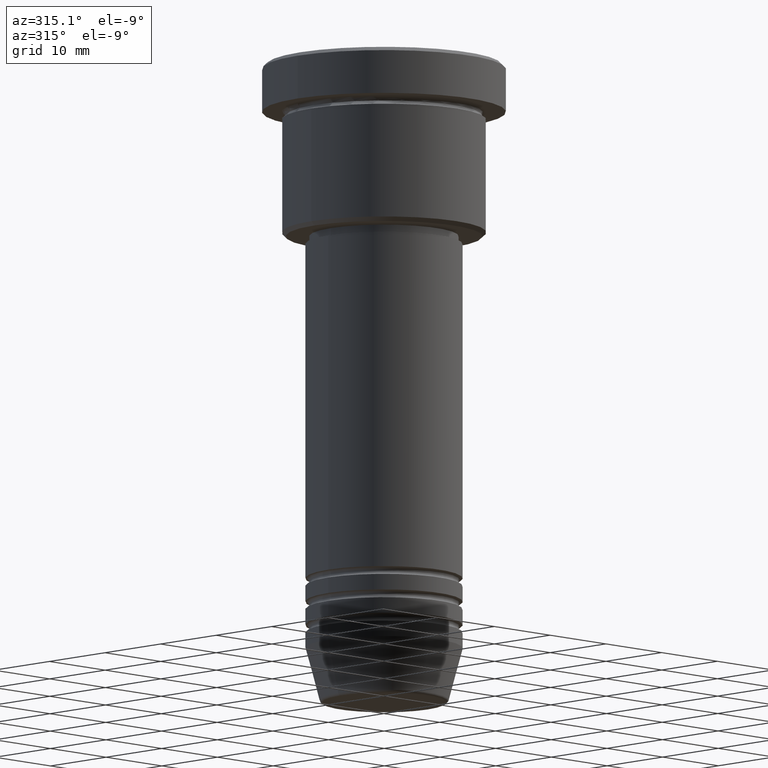
[diagram: clean part render]
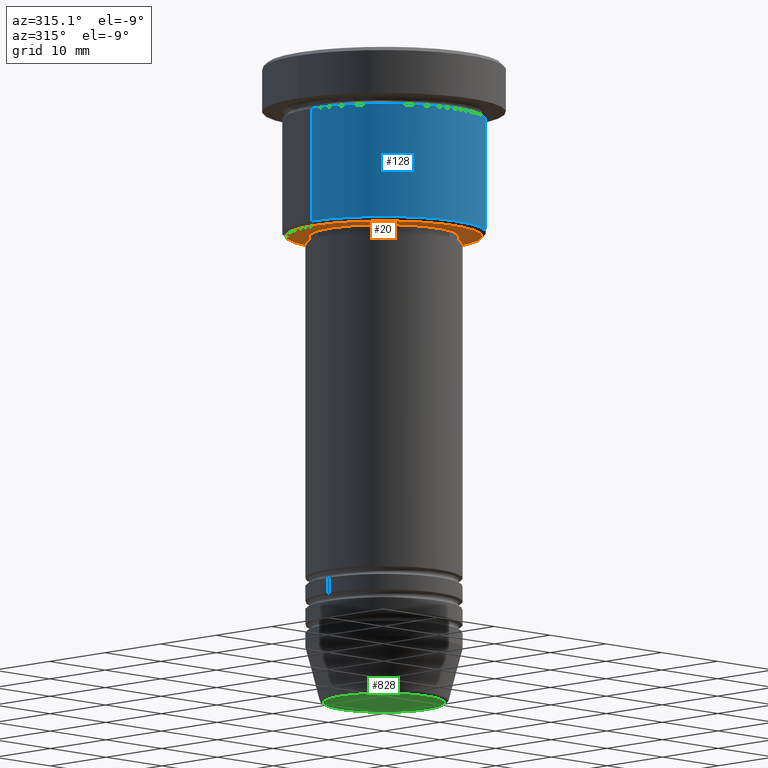
[diagram: same view with three faces highlighted in distinct colors, each labeled with its STEP entity id]
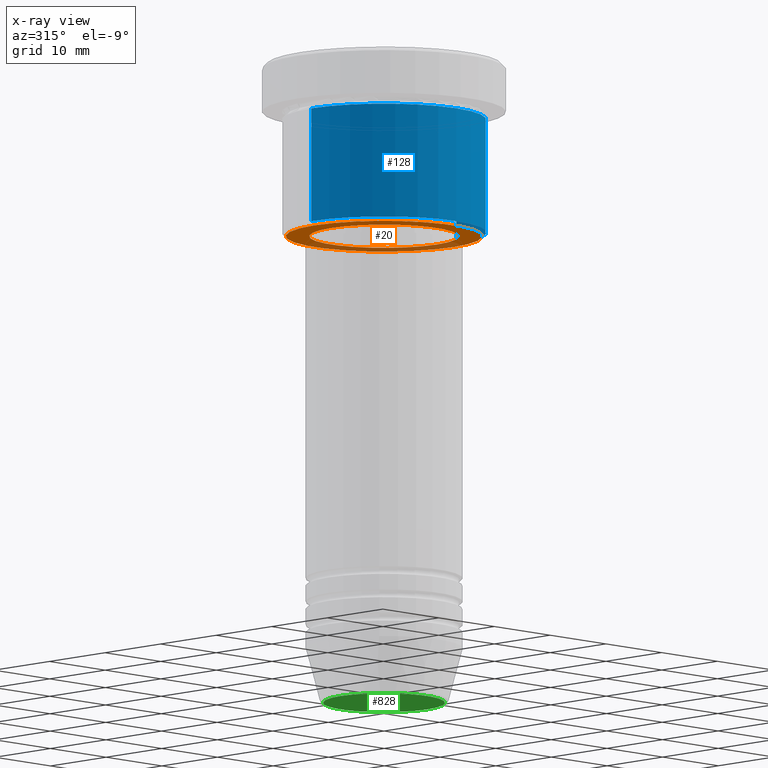
[diagram: x-ray of the same camera — body ghosted, the three highlighted faces saturated]
A machine part, auxiliary view with three faces highlighted in distinct colors.
The next image is the same camera in x-ray (body ghosted, the three faces saturated) — at least one of them is partly hidden behind the body in this view.
Their STEP definitions:

[orange] entity #20 — the highlighted planar face has unit normal (0, 0, -1).
#2 = DIRECTION ( 'NONE',  ( -1.000000000000000000, 0.000000000000000000, -0.000000000000000000 ) ) ;
#20 = ADVANCED_FACE ( 'NONE', ( #363, #109 ), #375, .T. ) ;
#42 = DIRECTION ( 'NONE',  ( 1.000000000000000000, 0.000000000000000000, 0.000000000000000000 ) ) ;
#58 = CARTESIAN_POINT ( 'NONE',  ( 9.500000000000000000, 0.000000000000000000, -21.99999999999999645 ) ) ;
#102 = DIRECTION ( 'NONE',  ( -1.000000000000000000, 0.000000000000000000, 0.000000000000000000 ) ) ;
#103 = ORIENTED_EDGE ( 'NONE', *, *, #207, .T. ) ;
#109 = FACE_BOUND ( 'NONE', #415, .T. ) ;
#155 = CARTESIAN_POINT ( 'NONE',  ( -9.500000000000000000, 1.163414459189985485E-15, -21.99999999999999645 ) ) ;
#207 = EDGE_CURVE ( 'NONE', #1055, #874, #981, .T. ) ;
#217 = AXIS2_PLACEMENT_3D ( 'NONE', #1094, #275, #2 ) ;
#262 = CIRCLE ( 'NONE', #545, 9.500000000000000000 ) ;
#275 = DIRECTION ( 'NONE',  ( 0.000000000000000000, 0.000000000000000000, -1.000000000000000000 ) ) ;
#320 = CARTESIAN_POINT ( 'NONE',  ( 0.000000000000000000, 0.000000000000000000, -21.99999999999999289 ) ) ;
#322 = ORIENTED_EDGE ( 'NONE', *, *, #1166, .T. ) ;
#326 = VERTEX_POINT ( 'NONE', #611 ) ;
#359 = DIRECTION ( 'NONE',  ( -1.000000000000000000, 0.000000000000000000, 0.000000000000000000 ) ) ;
#363 = FACE_OUTER_BOUND ( 'NONE', #587, .T. ) ;
#375 = PLANE ( 'NONE',  #217 ) ;
#393 = CARTESIAN_POINT ( 'NONE',  ( 0.000000000000000000, 0.000000000000000000, -21.99999999999999645 ) ) ;
#415 = EDGE_LOOP ( 'NONE', ( #103, #763 ) ) ;
#424 = AXIS2_PLACEMENT_3D ( 'NONE', #1022, #493, #42 ) ;
#476 = DIRECTION ( 'NONE',  ( -0.000000000000000000, -0.000000000000000000, 1.000000000000000000 ) ) ;
#493 = DIRECTION ( 'NONE',  ( -0.000000000000000000, -0.000000000000000000, 1.000000000000000000 ) ) ;
#545 = AXIS2_PLACEMENT_3D ( 'NONE', #393, #476, #838 ) ;
#587 = EDGE_LOOP ( 'NONE', ( #322, #1172 ) ) ;
#611 = CARTESIAN_POINT ( 'NONE',  ( 12.50000000000000355, 0.000000000000000000, -21.99999999999999289 ) ) ;
#690 = DIRECTION ( 'NONE',  ( 0.000000000000000000, 0.000000000000000000, -1.000000000000000000 ) ) ;
#708 = EDGE_CURVE ( 'NONE', #874, #1055, #262, .T. ) ;
#763 = ORIENTED_EDGE ( 'NONE', *, *, #708, .T. ) ;
#783 = CARTESIAN_POINT ( 'NONE',  ( -12.50000000000000355, 1.561424668912875506E-15, -21.99999999999999289 ) ) ;
#838 = DIRECTION ( 'NONE',  ( 1.000000000000000000, 0.000000000000000000, 0.000000000000000000 ) ) ;
#874 = VERTEX_POINT ( 'NONE', #155 ) ;
#890 = CIRCLE ( 'NONE', #1158, 12.50000000000000355 ) ;
#902 = CARTESIAN_POINT ( 'NONE',  ( 0.000000000000000000, 0.000000000000000000, -21.99999999999999289 ) ) ;
#925 = CIRCLE ( 'NONE', #1005, 12.50000000000000355 ) ;
#981 = CIRCLE ( 'NONE', #424, 9.500000000000000000 ) ;
#1005 = AXIS2_PLACEMENT_3D ( 'NONE', #320, #690, #102 ) ;
#1022 = CARTESIAN_POINT ( 'NONE',  ( 0.000000000000000000, 0.000000000000000000, -21.99999999999999645 ) ) ;
#1055 = VERTEX_POINT ( 'NONE', #58 ) ;
#1072 = VERTEX_POINT ( 'NONE', #783 ) ;
#1094 = CARTESIAN_POINT ( 'NONE',  ( 0.000000000000000000, 13.00000000000000000, -21.99999999999999289 ) ) ;
#1122 = EDGE_CURVE ( 'NONE', #1072, #326, #925, .T. ) ;
#1158 = AXIS2_PLACEMENT_3D ( 'NONE', #902, #1181, #359 ) ;
#1166 = EDGE_CURVE ( 'NONE', #326, #1072, #890, .T. ) ;
#1172 = ORIENTED_EDGE ( 'NONE', *, *, #1122, .T. ) ;
#1181 = DIRECTION ( 'NONE',  ( 0.000000000000000000, 0.000000000000000000, -1.000000000000000000 ) ) ;

[blue] entity #128 — the highlighted cylindrical surface (partial cylindrical patch) has radius 13 mm, axis along (-0, -0, 1).
#15 = CYLINDRICAL_SURFACE ( 'NONE', #501, 13.00000000000000000 ) ;
#19 = DIRECTION ( 'NONE',  ( 1.000000000000000000, 0.000000000000000000, 0.000000000000000000 ) ) ;
#44 = VERTEX_POINT ( 'NONE', #101 ) ;
#101 = CARTESIAN_POINT ( 'NONE',  ( 13.00000000000000000, 0.000000000000000000, -6.999999999999995559 ) ) ;
#128 = ADVANCED_FACE ( 'NONE', ( #456 ), #15, .T. ) ;
#143 = CIRCLE ( 'NONE', #734, 13.00000000000000000 ) ;
#154 = ORIENTED_EDGE ( 'NONE', *, *, #862, .T. ) ;
#160 = DIRECTION ( 'NONE',  ( -0.000000000000000000, -0.000000000000000000, 1.000000000000000000 ) ) ;
#169 = DIRECTION ( 'NONE',  ( -0.000000000000000000, -0.000000000000000000, 1.000000000000000000 ) ) ;
#181 = CIRCLE ( 'NONE', #618, 13.00000000000000000 ) ;
#214 = EDGE_CURVE ( 'NONE', #1154, #44, #181, .T. ) ;
#278 = VECTOR ( 'NONE', #160, 1000.000000000000000 ) ;
#313 = DIRECTION ( 'NONE',  ( -0.000000000000000000, -0.000000000000000000, 1.000000000000000000 ) ) ;
#333 = ORIENTED_EDGE ( 'NONE', *, *, #214, .F. ) ;
#368 = DIRECTION ( 'NONE',  ( 1.000000000000000000, 0.000000000000000000, 0.000000000000000000 ) ) ;
#398 = CARTESIAN_POINT ( 'NONE',  ( -13.00000000000000000, 1.592040838891559095E-15, 0.000000000000000000 ) ) ;
#456 = FACE_OUTER_BOUND ( 'NONE', #957, .T. ) ;
#496 = ORIENTED_EDGE ( 'NONE', *, *, #942, .T. ) ;
#497 = LINE ( 'NONE', #973, #278 ) ;
#501 = AXIS2_PLACEMENT_3D ( 'NONE', #823, #1104, #368 ) ;
#538 = CARTESIAN_POINT ( 'NONE',  ( -13.00000000000000000, 1.592040838891559095E-15, -6.999999999999995559 ) ) ;
#539 = VERTEX_POINT ( 'NONE', #1004 ) ;
#559 = DIRECTION ( 'NONE',  ( -0.000000000000000000, -0.000000000000000000, 1.000000000000000000 ) ) ;
#562 = VECTOR ( 'NONE', #559, 1000.000000000000000 ) ;
#596 = EDGE_CURVE ( 'NONE', #539, #1154, #764, .T. ) ;
#618 = AXIS2_PLACEMENT_3D ( 'NONE', #934, #313, #19 ) ;
#619 = DIRECTION ( 'NONE',  ( -1.000000000000000000, 0.000000000000000000, 0.000000000000000000 ) ) ;
#734 = AXIS2_PLACEMENT_3D ( 'NONE', #905, #169, #619 ) ;
#764 = LINE ( 'NONE', #398, #562 ) ;
#823 = CARTESIAN_POINT ( 'NONE',  ( 0.000000000000000000, 0.000000000000000000, 0.000000000000000000 ) ) ;
#862 = EDGE_CURVE ( 'NONE', #972, #44, #497, .T. ) ;
#905 = CARTESIAN_POINT ( 'NONE',  ( 0.000000000000000000, 0.000000000000000000, -21.50000000000000000 ) ) ;
#934 = CARTESIAN_POINT ( 'NONE',  ( 0.000000000000000000, 0.000000000000000000, -6.999999999999995559 ) ) ;
#942 = EDGE_CURVE ( 'NONE', #539, #972, #143, .T. ) ;
#957 = EDGE_LOOP ( 'NONE', ( #1095, #496, #154, #333 ) ) ;
#965 = CARTESIAN_POINT ( 'NONE',  ( 13.00000000000000000, 0.000000000000000000, -21.50000000000000000 ) ) ;
#972 = VERTEX_POINT ( 'NONE', #965 ) ;
#973 = CARTESIAN_POINT ( 'NONE',  ( 13.00000000000000000, 0.000000000000000000, 0.000000000000000000 ) ) ;
#1004 = CARTESIAN_POINT ( 'NONE',  ( -13.00000000000000000, 1.592040838891559095E-15, -21.50000000000000000 ) ) ;
#1095 = ORIENTED_EDGE ( 'NONE', *, *, #596, .F. ) ;
#1104 = DIRECTION ( 'NONE',  ( -0.000000000000000000, -0.000000000000000000, 1.000000000000000000 ) ) ;
#1154 = VERTEX_POINT ( 'NONE', #538 ) ;

[green] entity #828 — the highlighted planar face has unit normal (0, -0, 1).
#48 = AXIS2_PLACEMENT_3D ( 'NONE', #1056, #610, #1146 ) ;
#140 = AXIS2_PLACEMENT_3D ( 'NONE', #461, #195, #487 ) ;
#145 = CARTESIAN_POINT ( 'NONE',  ( -7.740692158992654726, 9.775343368540039135E-16, -81.99999999999998579 ) ) ;
#149 = EDGE_CURVE ( 'NONE', #1000, #438, #367, .T. ) ;
#195 = DIRECTION ( 'NONE',  ( 0.000000000000000000, 0.000000000000000000, -1.000000000000000000 ) ) ;
#218 = AXIS2_PLACEMENT_3D ( 'NONE', #362, #991, #1015 ) ;
#239 = CARTESIAN_POINT ( 'NONE',  ( 7.740692158992654726, 0.000000000000000000, -81.99999999999998579 ) ) ;
#276 = CIRCLE ( 'NONE', #218, 7.740692158992654726 ) ;
#362 = CARTESIAN_POINT ( 'NONE',  ( 0.000000000000000000, 0.000000000000000000, -81.99999999999998579 ) ) ;
#367 = CIRCLE ( 'NONE', #140, 7.740692158992654726 ) ;
#438 = VERTEX_POINT ( 'NONE', #239 ) ;
#450 = EDGE_CURVE ( 'NONE', #438, #1000, #276, .T. ) ;
#461 = CARTESIAN_POINT ( 'NONE',  ( 0.000000000000000000, 0.000000000000000000, -81.99999999999998579 ) ) ;
#487 = DIRECTION ( 'NONE',  ( 1.000000000000000000, 0.000000000000000000, 0.000000000000000000 ) ) ;
#607 = ORIENTED_EDGE ( 'NONE', *, *, #450, .T. ) ;
#610 = DIRECTION ( 'NONE',  ( 0.000000000000000000, -0.000000000000000000, 1.000000000000000000 ) ) ;
#828 = ADVANCED_FACE ( 'NONE', ( #1065 ), #978, .F. ) ;
#932 = ORIENTED_EDGE ( 'NONE', *, *, #149, .T. ) ;
#935 = EDGE_LOOP ( 'NONE', ( #607, #932 ) ) ;
#978 = PLANE ( 'NONE',  #48 ) ;
#991 = DIRECTION ( 'NONE',  ( 0.000000000000000000, 0.000000000000000000, -1.000000000000000000 ) ) ;
#1000 = VERTEX_POINT ( 'NONE', #145 ) ;
#1015 = DIRECTION ( 'NONE',  ( 1.000000000000000000, 0.000000000000000000, 0.000000000000000000 ) ) ;
#1056 = CARTESIAN_POINT ( 'NONE',  ( 0.000000000000000000, 0.000000000000000000, -81.99999999999998579 ) ) ;
#1065 = FACE_OUTER_BOUND ( 'NONE', #935, .T. ) ;
#1146 = DIRECTION ( 'NONE',  ( 1.000000000000000000, 0.000000000000000000, 0.000000000000000000 ) ) ;